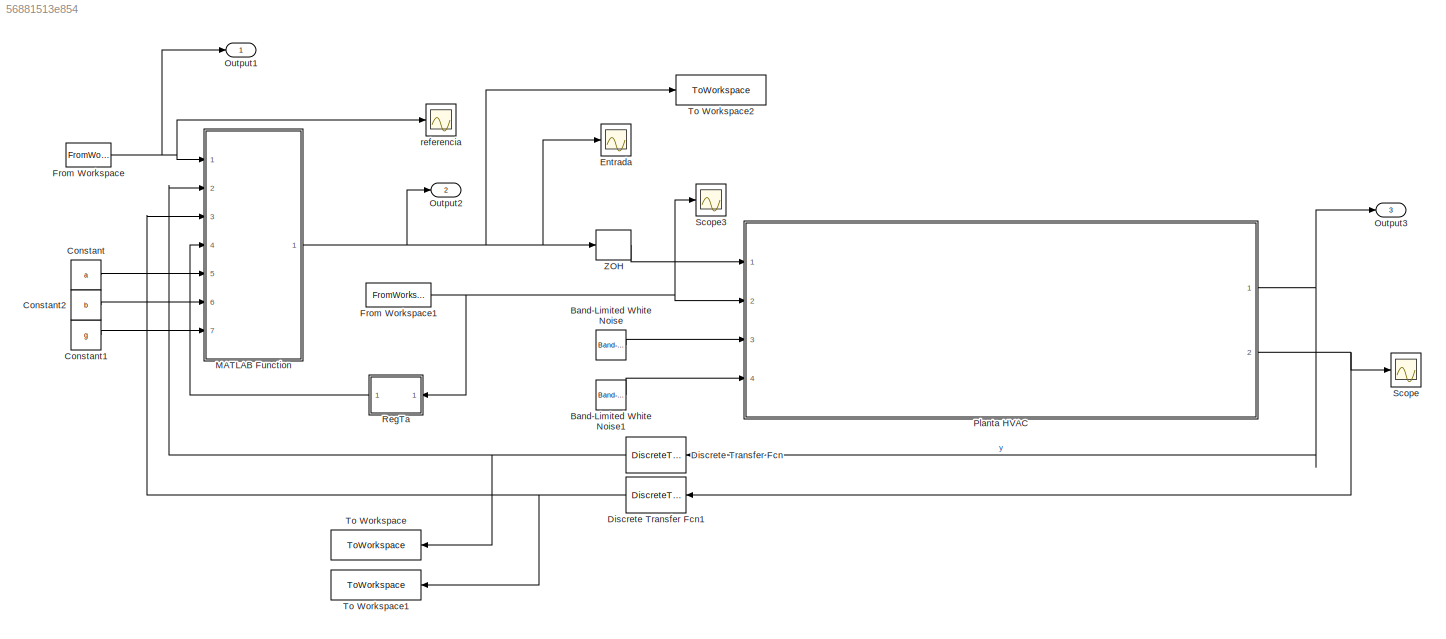
MODEL slx_56881513e854
KIND model
CONFIG AbsTol = auto
CONFIG EnableMultiTasking = off
CONFIG FixedStep = Ts
CONFIG MaxStep = auto
CONFIG MinStep = auto
CONFIG RelTol = 1e-3
CONFIG SampleTimeConstraint = Unconstrained
CONFIG SolverName = ode45
CONFIG StartTime = 0
CONFIG StopTime = Tf
BLOCK [Reference] Band-Limited White Noise  REF=simulink/Sources/Band-Limited
White Noise
  Ports = [0, 1]
  SourceBlock = simulink/Sources/Band-Limited\nWhite Noise
  SourceProductBaseCode = SL
  SourceType = Band-Limited White Noise.
BLOCK [Reference] Band-Limited White Noise1  REF=simulink/Sources/Band-Limited
White Noise
  Ports = [0, 1]
  SourceBlock = simulink/Sources/Band-Limited\nWhite Noise
  SourceProductBaseCode = SL
  SourceType = Band-Limited White Noise.
BLOCK [Constant] Constant
  Value = a
BLOCK [Constant] Constant1
  Value = g
BLOCK [Constant] Constant2
  Value = b
BLOCK [DiscreteTransferFcn] Discrete Transfer Fcn
  Denominator = [1]
  InputPortMap = u0
  NameLocation = top
  Ports = [1, 1]
  SampleTime = Ts
BLOCK [DiscreteTransferFcn] Discrete Transfer Fcn1
  Denominator = [1]
  InputPortMap = u0
  NameLocation = top
  Ports = [1, 1]
  SampleTime = Ts
BLOCK [Scope] Entrada
  Floating = off
  NumInputPorts = 1
  Ports = [1]
  ScopeSpecificationString = Simulink.scopes.TimeScopeBlockCfg('CurrentConfiguration', extmgr.ConfigurationSet(extmgr.Configuration('Core','General UI',true),extmgr.Configuration('Core','Source UI',true),extmgr.Configuration('Sources','WiredSimulink',true,'DataLoggingVariableName','ScopeData1'),extmgr.Configuration('Visuals','Time Domain',true,'SerializedDisplays',{struct('MinYLimReal','1.9999979','MaxYLimReal','2.0000002','Y...<+1443ch>
BLOCK [FromWorkspace] From Workspace
  SampleTime = Ts
  VariableName = ref
BLOCK [FromWorkspace] From Workspace1
  VariableName = Tamb
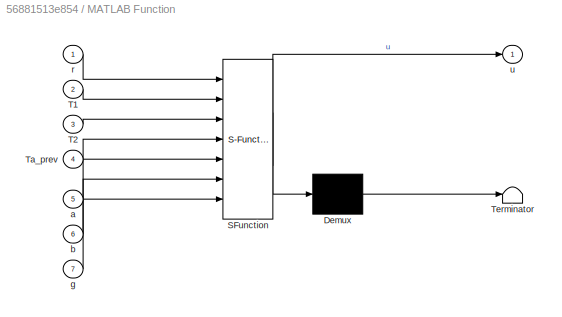
BLOCK [SubSystem] MATLAB Function
  ErrorFcn = Stateflow.Translate.translate
  PermitHierarchicalResolution = ExplicitOnly
  Ports = [7, 1]
  RequestExecContextInheritance = off
  SFBlockType = MATLAB Function
  TreatAsAtomicUnit = on
BLOCK [Demux] MATLAB Function/ Demux 
  Outputs = 1
  Ports = [1, 1]
BLOCK [S-Function] MATLAB Function/ SFunction 
  EnableBusSupport = on
  FunctionName = sf_sfun
  PortCounts = [7 2]
  Ports = [7, 2]
  SFcnIsStateOwnerBlock = off
  SFunctionDeploymentMode = off
  Tag = Stateflow S-Function 2
BLOCK [Terminator] MATLAB Function/ Terminator 
BLOCK [Inport] MATLAB Function/T1
  Port = 2
BLOCK [Inport] MATLAB Function/T2
  Port = 3
BLOCK [Inport] MATLAB Function/Ta_prev
  Port = 4
BLOCK [Inport] MATLAB Function/a
  Port = 5
BLOCK [Inport] MATLAB Function/b
  Port = 6
BLOCK [Inport] MATLAB Function/g
  Port = 7
BLOCK [Inport] MATLAB Function/r
BLOCK [Outport] MATLAB Function/u
BLOCK [Outport] Output1
  SignalName = ref
BLOCK [Outport] Output2
  Port = 2
  PortDimensions = [1]
  SignalName = u
BLOCK [Outport] Output3
  Port = 3
  PortDimensions = [1]
  SignalName = y
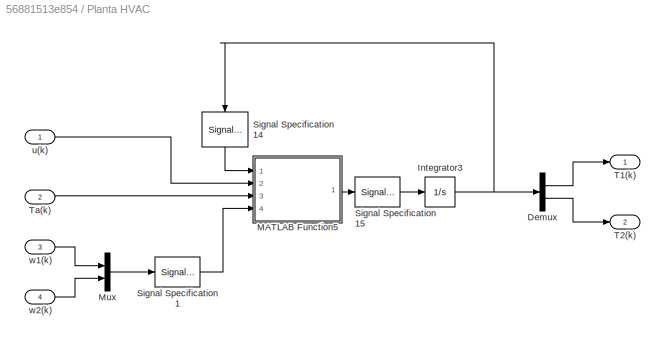
BLOCK [SubSystem] Planta HVAC
  Ports = [4, 2]
  RequestExecContextInheritance = off
  ShowPortLabels = FromPortBlockName
BLOCK [Demux] Planta HVAC/Demux
  Outputs = 2
  Ports = [1, 2]
BLOCK [Integrator] Planta HVAC/Integrator3
  InitialCondition = [10.12;10.12]
  Ports = [1, 1]
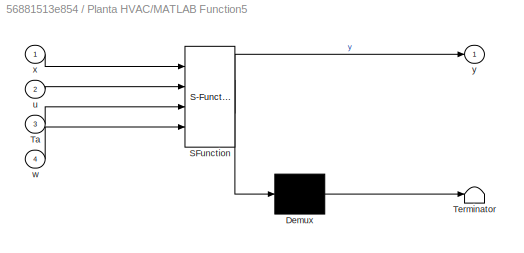
BLOCK [SubSystem] Planta HVAC/MATLAB Function5
  ErrorFcn = Stateflow.Translate.translate
  PermitHierarchicalResolution = ExplicitOnly
  Ports = [4, 1]
  RequestExecContextInheritance = off
  SFBlockType = MATLAB Function
  TreatAsAtomicUnit = on
BLOCK [Demux] Planta HVAC/MATLAB Function5/ Demux 
  Outputs = 1
  Ports = [1, 1]
BLOCK [S-Function] Planta HVAC/MATLAB Function5/ SFunction 
  EnableBusSupport = on
  FunctionName = sf_sfun
  PortCounts = [4 2]
  Ports = [4, 2]
  SFcnIsStateOwnerBlock = off
  SFunctionDeploymentMode = off
  Tag = Stateflow S-Function 10
BLOCK [Terminator] Planta HVAC/MATLAB Function5/ Terminator 
BLOCK [Inport] Planta HVAC/MATLAB Function5/Ta
  Port = 3
BLOCK [Inport] Planta HVAC/MATLAB Function5/u
  Port = 2
BLOCK [Inport] Planta HVAC/MATLAB Function5/w
  Port = 4
BLOCK [Inport] Planta HVAC/MATLAB Function5/x
BLOCK [Outport] Planta HVAC/MATLAB Function5/y
BLOCK [Mux] Planta HVAC/Mux
  DisplayOption = bar
  Inputs = 2
  Ports = [2, 1]
BLOCK [SignalSpecification] Planta HVAC/Signal Specification1
  Dimensions = [2,1]
  SampleTime = Ts
BLOCK [SignalSpecification] Planta HVAC/Signal Specification14
  Dimensions = [2,1]
  NameLocation = left
  SampleTime = Ts
BLOCK [SignalSpecification] Planta HVAC/Signal Specification15
  Dimensions = [2,1]
  SampleTime = Ts
BLOCK [Outport] Planta HVAC/T1(k)
BLOCK [Outport] Planta HVAC/T2(k)
  Port = 2
BLOCK [Inport] Planta HVAC/Ta(k)
  Port = 2
BLOCK [Inport] Planta HVAC/u(k)
BLOCK [Inport] Planta HVAC/w1(k)
  Port = 3
BLOCK [Inport] Planta HVAC/w2(k)
  Port = 4
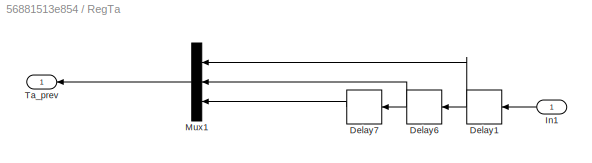
BLOCK [SubSystem] RegTa
  NameLocation = top
  Ports = [1, 1]
  RequestExecContextInheritance = off
BLOCK [Delay] RegTa/Delay1
  DelayLength = 1
  InputPortMap = u0
  Ports = [1, 1]
  SampleTime = Ts
BLOCK [Delay] RegTa/Delay6
  DelayLength = 1
  InputPortMap = u0
  Ports = [1, 1]
  SampleTime = Ts
BLOCK [Delay] RegTa/Delay7
  DelayLength = 1
  InputPortMap = u0
  Ports = [1, 1]
  SampleTime = Ts
BLOCK [Inport] RegTa/In1
BLOCK [Mux] RegTa/Mux1
  DisplayOption = bar
  Inputs = 3
  Ports = [3, 1]
BLOCK [Outport] RegTa/Ta_prev
  PortDimensions = [1 3]
BLOCK [Scope] Scope
  Floating = off
  NumInputPorts = 1
  Ports = [1]
  ScopeSpecificationString = Simulink.scopes.TimeScopeBlockCfg('CurrentConfiguration', extmgr.ConfigurationSet(extmgr.Configuration('Core','General UI',true),extmgr.Configuration('Core','Source UI',true),extmgr.Configuration('Sources','WiredSimulink',true),extmgr.Configuration('Visuals','Time Domain',true,'SerializedDisplays',{struct('MinYLimReal','9.93029','MaxYLimReal','11.82739','YLabelReal','','MinYLimMag','9.93029','MaxY...<+1335ch>
BLOCK [Scope] Scope3
  Floating = off
  NumInputPorts = 1
  Ports = [1]
  ScopeSpecificationString = Simulink.scopes.TimeScopeBlockCfg('CurrentConfiguration', extmgr.ConfigurationSet(extmgr.Configuration('Core','General UI',true),extmgr.Configuration('Core','Source UI',true),extmgr.Configuration('Sources','WiredSimulink',true,'DataLoggingVariableName','ScopeData2'),extmgr.Configuration('Visuals','Time Domain',true,'SerializedDisplays',{struct('MinYLimReal','5.46869','MaxYLimReal','11.02045','YLab...<+1375ch>
BLOCK [ToWorkspace] To Workspace
  FixptAsFi = on
  MaxDataPoints = inf
  NameLocation = top
  Ports = [1]
  SampleTime = -1
  Save2DSignal = 2-D array (concatenate along first dimension)
  VariableName = T1
BLOCK [ToWorkspace] To Workspace1
  FixptAsFi = on
  MaxDataPoints = inf
  NameLocation = top
  Ports = [1]
  SampleTime = Ts
  Save2DSignal = 2-D array (concatenate along first dimension)
  VariableName = T2
BLOCK [ToWorkspace] To Workspace2
  FixptAsFi = on
  MaxDataPoints = inf
  Ports = [1]
  SampleTime = Ts
  Save2DSignal = 2-D array (concatenate along first dimension)
  VariableName = U
BLOCK [ZeroOrderHold] ZOH
  SampleTime = -1
BLOCK [Scope] referencia
  Floating = off
  NumInputPorts = 1
  Ports = [1]
  ScopeSpecificationString = Simulink.scopes.TimeScopeBlockCfg('CurrentConfiguration', extmgr.ConfigurationSet(extmgr.Configuration('Core','General UI',true),extmgr.Configuration('Core','Source UI',true),extmgr.Configuration('Sources','WiredSimulink',true,'DataLoggingVariableName','ScopeData1'),extmgr.Configuration('Visuals','Time Domain',true,'SerializedDisplays',{struct('MinYLimReal','17.125','MaxYLimReal','25.875','YLabelR...<+1431ch>
LINE Band-Limited White Noise1:1 -> Planta HVAC:4
LINE Band-Limited White Noise:1 -> Planta HVAC:3
LINE Constant1:1 -> MATLAB Function:7
LINE Constant2:1 -> MATLAB Function:6
LINE Constant:1 -> MATLAB Function:5
NET Discrete Transfer Fcn1:1 -> MATLAB Function:3, To Workspace1:1
NET Discrete Transfer Fcn:1 -> MATLAB Function:2, To Workspace:1
NET From Workspace1:1 -> Planta HVAC:2, RegTa:1, Scope3:1
NET From Workspace:1 -> MATLAB Function:1, Output1:1, referencia:1
NET MATLAB Function:1 -> Entrada:1, Output2:1, To Workspace2:1, ZOH:1
LINE Planta HVAC/Demux:1 -> Planta HVAC/T1(k):1
LINE Planta HVAC/Demux:2 -> Planta HVAC/T2(k):1
NET Planta HVAC/Integrator3:1 -> Planta HVAC/Demux:1, Planta HVAC/Signal Specification14:1
LINE Planta HVAC/MATLAB Function5:1 -> Planta HVAC/Signal Specification15:1
LINE Planta HVAC/Mux:1 -> Planta HVAC/Signal Specification1:1
LINE Planta HVAC/Signal Specification14:1 -> Planta HVAC/MATLAB Function5:1
LINE Planta HVAC/Signal Specification15:1 -> Planta HVAC/Integrator3:1
LINE Planta HVAC/Signal Specification1:1 -> Planta HVAC/MATLAB Function5:4
LINE Planta HVAC/Ta(k):1 -> Planta HVAC/MATLAB Function5:3
LINE Planta HVAC/u(k):1 -> Planta HVAC/MATLAB Function5:2
LINE Planta HVAC/w1(k):1 -> Planta HVAC/Mux:1
LINE Planta HVAC/w2(k):1 -> Planta HVAC/Mux:2
NET Planta HVAC:1 -> Discrete Transfer Fcn:1, Output3:1
NET Planta HVAC:2 -> Discrete Transfer Fcn1:1, Scope:1
NET RegTa/Delay1:1 -> RegTa/Delay6:1, RegTa/Mux1:1
NET RegTa/Delay6:1 -> RegTa/Delay7:1, RegTa/Mux1:2
LINE RegTa/Delay7:1 -> RegTa/Mux1:3
LINE RegTa/In1:1 -> RegTa/Delay1:1
LINE RegTa/Mux1:1 -> RegTa/Ta_prev:1
LINE RegTa:1 -> MATLAB Function:4
LINE ZOH:1 -> Planta HVAC:1
note: NET lines group one-source signal fan-out (src -> all destinations, sorted); 1:1 wires keep LINE
CHART MATLAB Function states=1 transitions=1
  STATE_LABEL 'eML_blk_kernel()'
  STATE_LABEL "SCRIPT:\nfunction u = control(r,T1,T2,Ta_prev, a, b, g)\ncoder.extrinsic('controller')\nu = zeros(1,1);\nu = controller(r, T1, T2, Ta_prev, a, b, g);\nend"
CHART Planta HVAC/MATLAB Function5 states=1 transitions=1
  STATE_LABEL 'eML_blk_kernel()'
  STATE_LABEL 'SCRIPT:\nfunction y = fcn(x,u,Ta,w)\n%% Parametros\nc1=2.508*10^6;\nc2=4.636*10^7;\ncp=1012;\nR=1.7*10^(-3);\nRa=1.3*10^(-3);\ndelta=0.7;\nDeltaT=13;\n%% Constantes\na1=(cp*(1-delta))/c1;\na2=1/(R*c1);\na3=1/(Ra*c1);\na4=(DeltaT*cp)/c1;\na5=1/c1;\na6=1/(R*c2);\na7=1/c2;\n%% Calculo del sistema\nxdot=zeros(2,1);\nxdot(1)=a1*(Ta-x(1))*u+a2*(x(2)-x(1))+a3*(Ta-x(1))+a4*u+a5*w(1);\nxdot(2)=a6*(x(1)-x(2))+a7*w(2);\ny = xdot;...<+1ch>'
CHART  states=0 transitions=0
CHART  states=0 transitions=0
